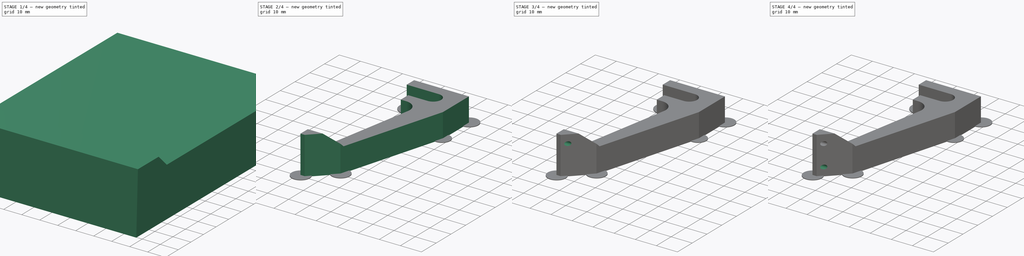
[diagram: build sequence overview — one tinted view per stage of 4, left to right]
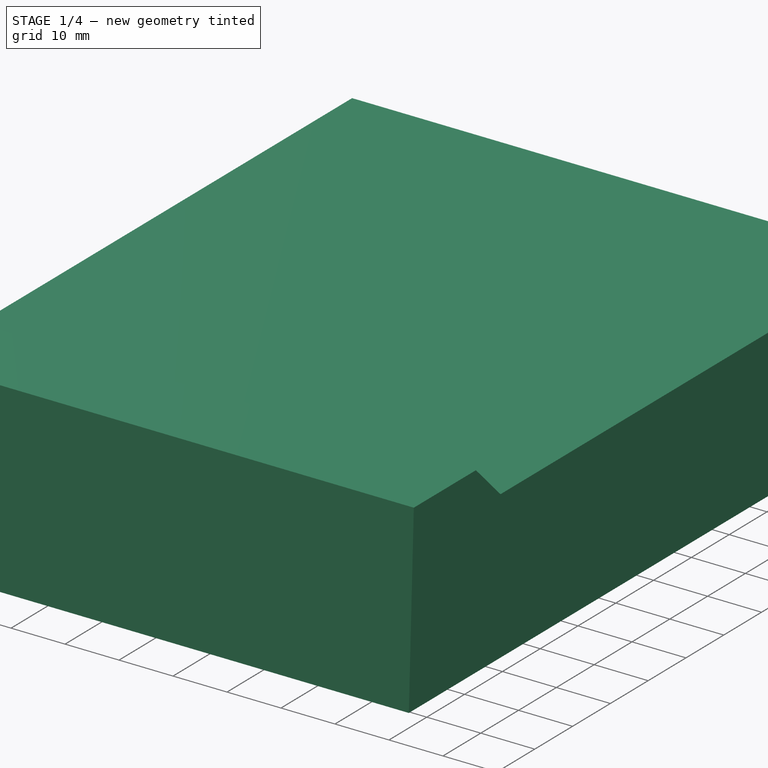
[diagram: stage 1 of 4 — iso view after this stage's code; geometry added in this stage tinted green]
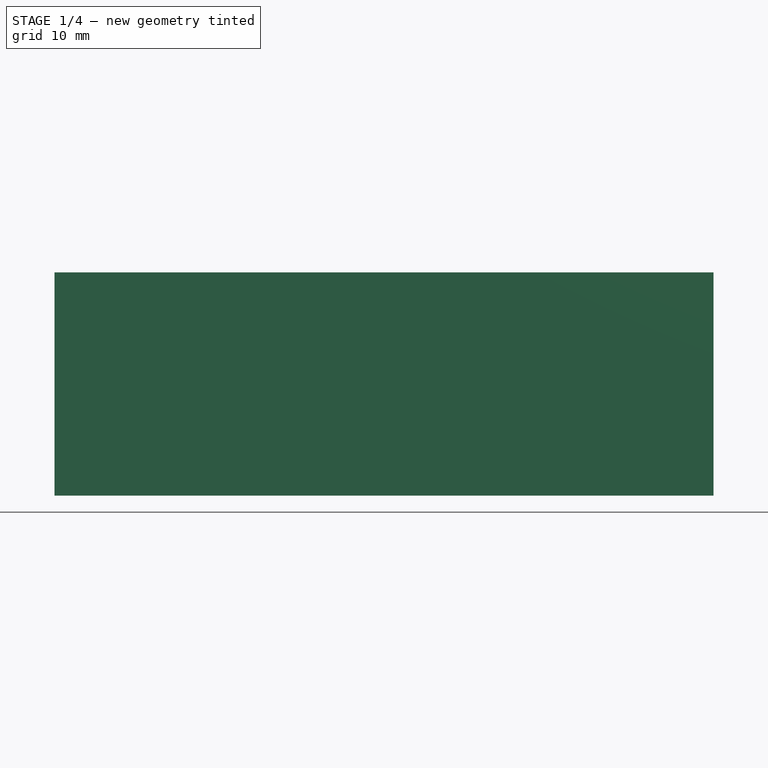
[diagram: stage 1 of 4 — front view after this stage's code; geometry added in this stage tinted green]
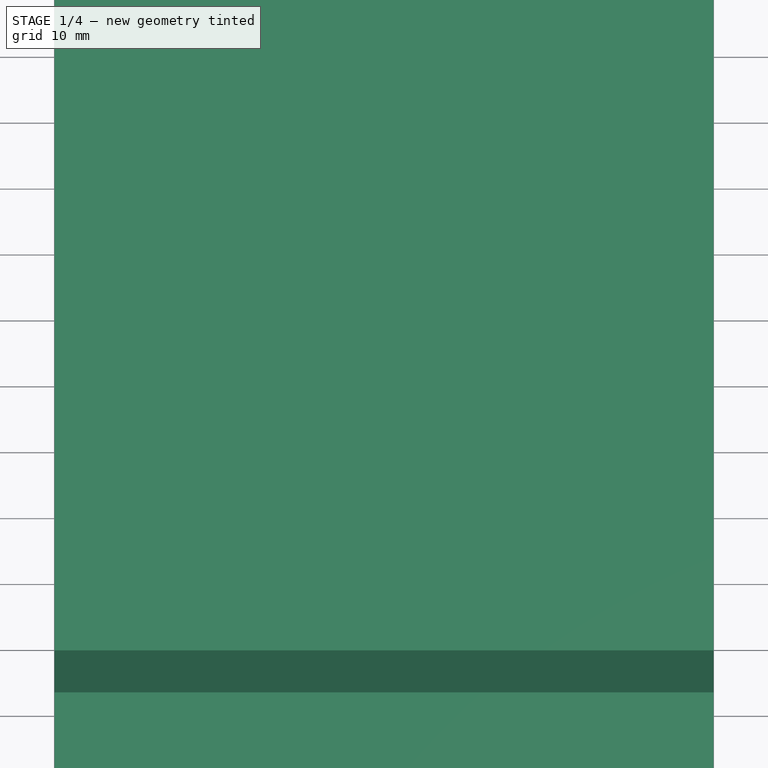
[diagram: stage 1 of 4 — top view after this stage's code; geometry added in this stage tinted green]
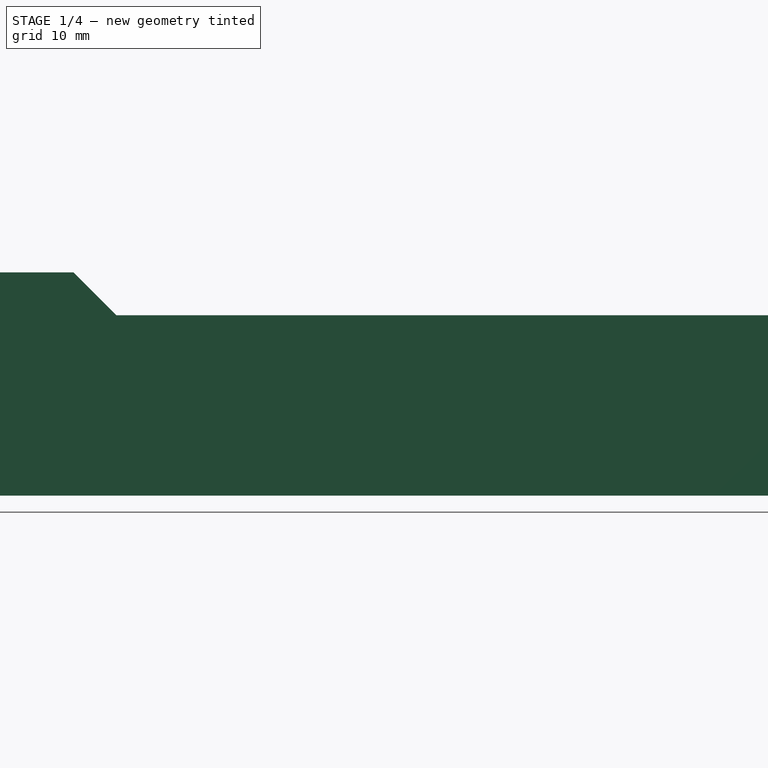
[diagram: stage 1 of 4 — right view after this stage's code; geometry added in this stage tinted green]
FCSTD DOCUMENT  (FreeCAD 0.17R13541 (Git))
Label: kossel_xl_probe_removable_calibration
License: All rights reserved
LicenseURL: http://en.wikipedia.org/wiki/All_rights_reserved
objects: Sketcher::SketchObject×4, Part::Extrusion×4, Part::Cut×2, Part::Part2DObjectPython×1, Part::FeaturePython×1, Part::MultiCommon×1, Part::MultiFuse×1
note: 14 computed .brp shape members not serialized (recipe doc carries the construction recipe); baked Part::Feature solids carry a one-line shape summary decoded from their .brp

FEATURE [Sketcher::SketchObject] Sketch002
  Placement = pos=(0,0,0) rot=(0.57735,0.57735,0.57735;2.0944rad)
  sketch-geometry (6):
    g0: LineSegment StartX=-83.422 StartY=18 StartZ=0 EndX=-67 EndY=18 EndZ=0
    g1: LineSegment StartX=-67 StartY=18 StartZ=0 EndX=-60.5 EndY=11.5 EndZ=0
    g2: LineSegment StartX=-60.5 StartY=11.5 StartZ=0 EndX=43.0716 EndY=11.5 EndZ=0
    g3: LineSegment StartX=43.0716 StartY=11.5 StartZ=0 EndX=44.9375 EndY=-15.8603 EndZ=0
    g4: LineSegment StartX=44.9375 StartY=-15.8603 StartZ=0 EndX=-84.7437 EndY=-15.8603 EndZ=0
    g5: LineSegment StartX=-84.7437 StartY=-15.8603 StartZ=0 EndX=-83.422 EndY=18 EndZ=0
  constraints (13):
    c: Horizontal(g0)
    c: Coincident(g0,g1)
    c: Coincident(g1,g2)
    c: Horizontal(g2)
    c: Coincident(g2,g3)
    c: Coincident(g3,g4)
    c: Horizontal(g4)
    c: Coincident(g4,g5)
    c: Coincident(g5,g0)
    c: DistanceY(g0) = 18
    c: DistanceX(g0) = -67
    c: Angle(g1) = -0.785398
    c: DistanceY(g2) = 11.5
FEATURE [Part::Extrusion] Extrude002  label="maska"
  Base = -> Sketch002
  Dir = (1,0,0)
  DirMode = 2
  FaceMakerClass = Part::FaceMakerBullseye
  LengthFwd = 100
  LengthRev = 0
  Solid = true
  Symmetric = true
FEATURE [Sketcher::SketchObject] Sketch003
  sketch-geometry (6):
    g0: Circle CenterX=2.92924 CenterY=2.37934 CenterZ=0 NormalX=0 NormalY=0 NormalZ=1 AngleXU=0 Radius=5
    g1: Circle CenterX=28.8976 CenterY=5.40407 CenterZ=0 NormalX=0 NormalY=0 NormalZ=1 AngleXU=0 Radius=4.29356
    g2: Circle CenterX=3.19554 CenterY=-72.0734 CenterZ=0 NormalX=0 NormalY=0 NormalZ=1 AngleXU=0 Radius=4.29292
    g3: Circle CenterX=14.9099 CenterY=-61.7508 CenterZ=0 NormalX=0 NormalY=0 NormalZ=1 AngleXU=0 Radius=4.2473
    g4: Circle CenterX=6.86064 CenterY=-10.3698 CenterZ=0 NormalX=0 NormalY=0 NormalZ=1 AngleXU=0 Radius=4.62194
    g5: Circle CenterX=28.6657 CenterY=-12.6895 CenterZ=0 NormalX=0 NormalY=0 NormalZ=1 AngleXU=0 Radius=3.83976
  constraints (1):
    c: Radius(g0) = 5
FEATURE [Part::Extrusion] Extrude003  label="punktyklejenia"
  Base = -> Sketch003
  Dir = (0,0,1)
  DirMode = 2
  FaceMakerClass = Part::FaceMakerBullseye
  LengthFwd = 0.3
  LengthRev = 0
  Solid = true
  Symmetric = false
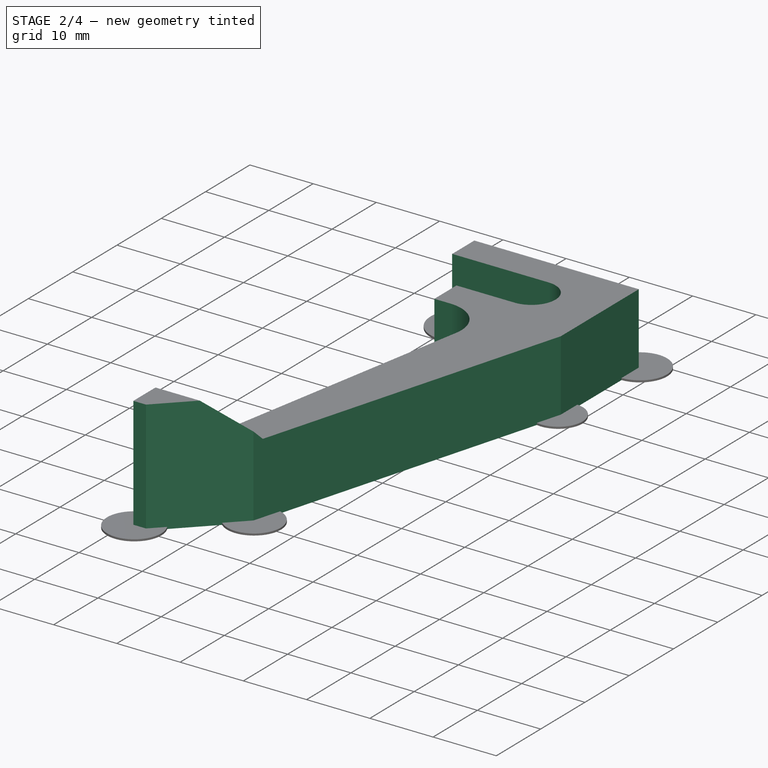
[diagram: stage 2 of 4 — iso view after this stage's code; geometry added in this stage tinted green]
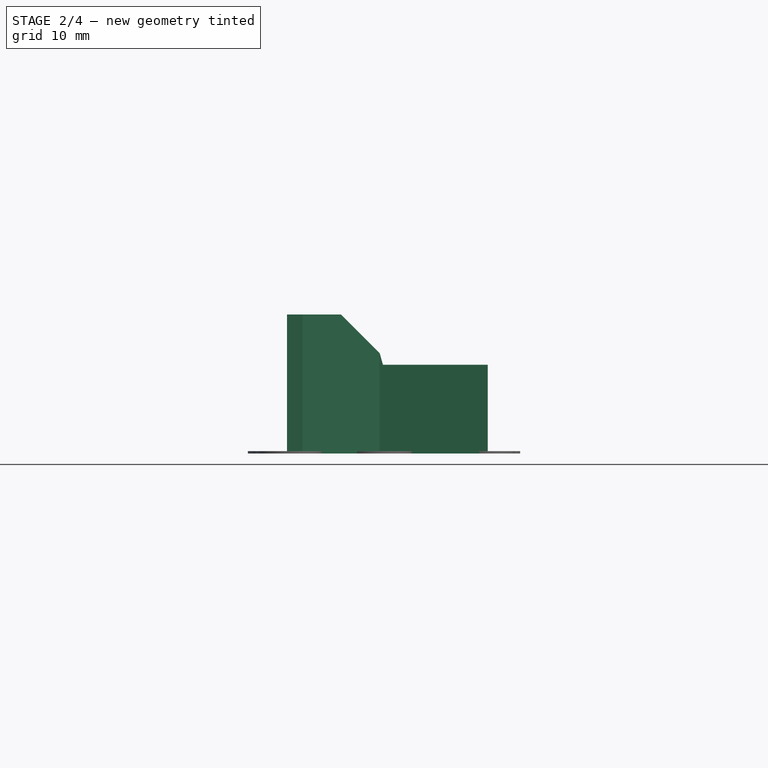
[diagram: stage 2 of 4 — front view after this stage's code; geometry added in this stage tinted green]
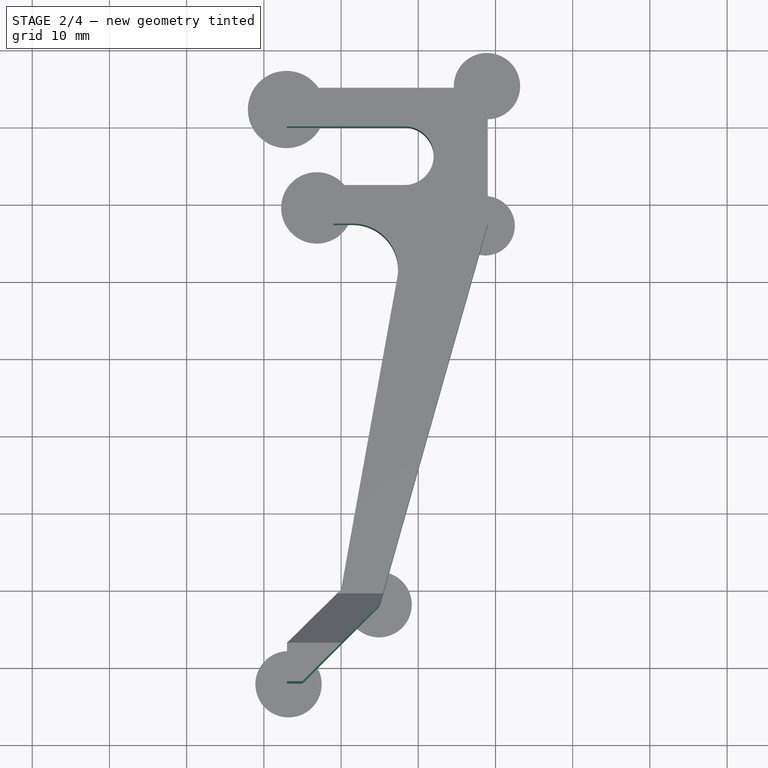
[diagram: stage 2 of 4 — top view after this stage's code; geometry added in this stage tinted green]
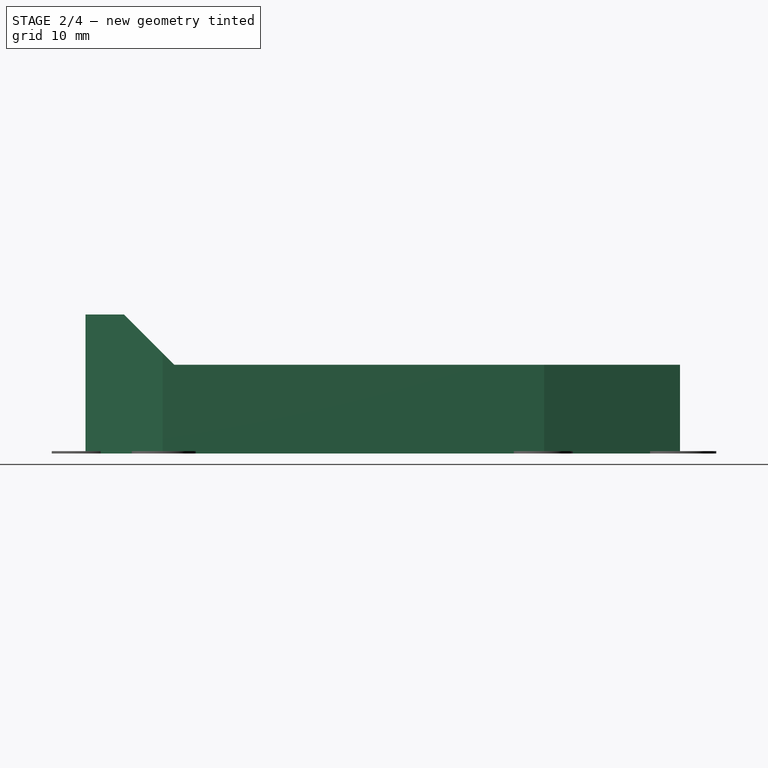
[diagram: stage 2 of 4 — right view after this stage's code; geometry added in this stage tinted green]
FEATURE [Sketcher::SketchObject] Sketch
  sketch-geometry (15):
    g0: LineSegment StartX=3 StartY=5 StartZ=0 EndX=29 EndY=5 EndZ=0
    g1: LineSegment StartX=29 StartY=5 StartZ=0 EndX=29 EndY=-12.6 EndZ=0
    g2: LineSegment StartX=10 StartY=-60 StartZ=0 EndX=17.2908 EndY=-19.529 EndZ=0
    g3: LineSegment StartX=11.4986 StartY=-12.6 StartZ=0 EndX=9 EndY=-12.6 EndZ=0
    g4: LineSegment StartX=9 StartY=-12.6 StartZ=0 EndX=9 EndY=-7.6 EndZ=0
    g5: LineSegment StartX=9 StartY=-7.6 StartZ=0 EndX=18.2 EndY=-7.6 EndZ=0
    g6: LineSegment StartX=18.2 StartY=0 StartZ=0 EndX=3 EndY=0 EndZ=0
    g7: LineSegment StartX=3 StartY=0 StartZ=0 EndX=3 EndY=5 EndZ=0
    g8: LineSegment StartX=10 StartY=-60 StartZ=0 EndX=3 EndY=-67 EndZ=0
    g9: LineSegment StartX=3 StartY=-67 StartZ=0 EndX=3 EndY=-72 EndZ=0
    g10: LineSegment StartX=3 StartY=-72 StartZ=0 EndX=5 EndY=-72 EndZ=0
    g11: LineSegment StartX=5 StartY=-72 StartZ=0 EndX=15 EndY=-62 EndZ=0
    g12: LineSegment StartX=15 StartY=-62 StartZ=0 EndX=29 EndY=-12.6 EndZ=0
    g13: ArcOfCircle CenterX=11.4986 CenterY=-18.4855 CenterZ=0 NormalX=0 NormalY=0 NormalZ=1 AngleXU=0 Radius=5.88552 StartAngle=6.10495 EndAngle=7.85398
    g14: ArcOfCircle CenterX=18.2 CenterY=-3.8 CenterZ=0 NormalX=0 NormalY=0 NormalZ=1 AngleXU=0 Radius=3.8 StartAngle=4.71239 EndAngle=7.85398
  constraints (41):
    c: Horizontal(g0)
    c: Coincident(g0,g1)
    c: Vertical(g1)
    c: Horizontal(g3)
    c: Coincident(g3,g4)
    c: Vertical(g4)
    c: Coincident(g4,g5)
    c: Horizontal(g5)
    c: Horizontal(g6)
    c: Coincident(g6,g7)
    c: Coincident(g7,g0)
    c: Vertical(g7)
    c: DistanceY(g4,g4) = 5
    c: DistanceY(g5,g6) = 7.6
    c: DistanceY(g7,g7) = 5
    c: DistanceX(g-1,g6) = 18.2
    c: DistanceY(g6,g-1) = 0
    c: DistanceX(g6,g0) = 10.8
    c: Coincident(g2,g8)
    c: Coincident(g8,g9)
    c: Vertical(g9)
    c: Coincident(g9,g10)
    c: Horizontal(g10)
    c: Coincident(g10,g11)
    c: Coincident(g11,g12)
    c: DistanceY(g9,g8) = 5
    c: Angle(g8) = -2.35619
    c: DistanceX(g8) = 3
    c: DistanceX(g2,g11) = 5
    c: Distance(g10) = 2
    c: Parallel(g8,g11)
    c: DistanceX(g0) = 3
    c: DistanceX(g4) = 9
    c: DistanceY(g9) = -72
    c: DistanceX(g2) = 10
    c: Tangent(g13,g3) = -1.5708
    c: Tangent(g13,g2) = -1.5708
    c: Coincident(g1,g12)
    c: DistanceY(g3,g1) = 0
    c: Tangent(g14,g6) = -1.5708
    c: Tangent(g14,g5) = -1.5708
FEATURE [Part::Part2DObjectPython] DWire  # Draft 2D object (typed FeaturePython)
  Base = -> Sketch
  ChamferSize = 0
  Closed = true
  End = (0.289943,0.0785695,0)
  FilletRadius = 0
  Length = 225
  MakeFace = true
  Points = (10) [(0.289943,5.07857,0),(20.2899,5.07857,0),(20.2899,-72.4214,0),(15.2899,-72.4214,0),(15.2899,-12.4214,0),(0.289943,-12.4214,0),(0.289943,-7.42143,0),+3 more]
  Start = (0.289943,5.07857,0)
  Subdivisions = 0
FEATURE [Part::Extrusion] Extrude  label="profil"
  Base = -> DWire
  Dir = (0,0,1)
  DirMode = 2
  FaceMakerClass = Part::FaceMakerBullseye
  LengthFwd = 20
  LengthRev = 0
  Solid = true
  Symmetric = false
FEATURE [Part::MultiCommon] Common
  Shapes = -> [Extrude002,Extrude]
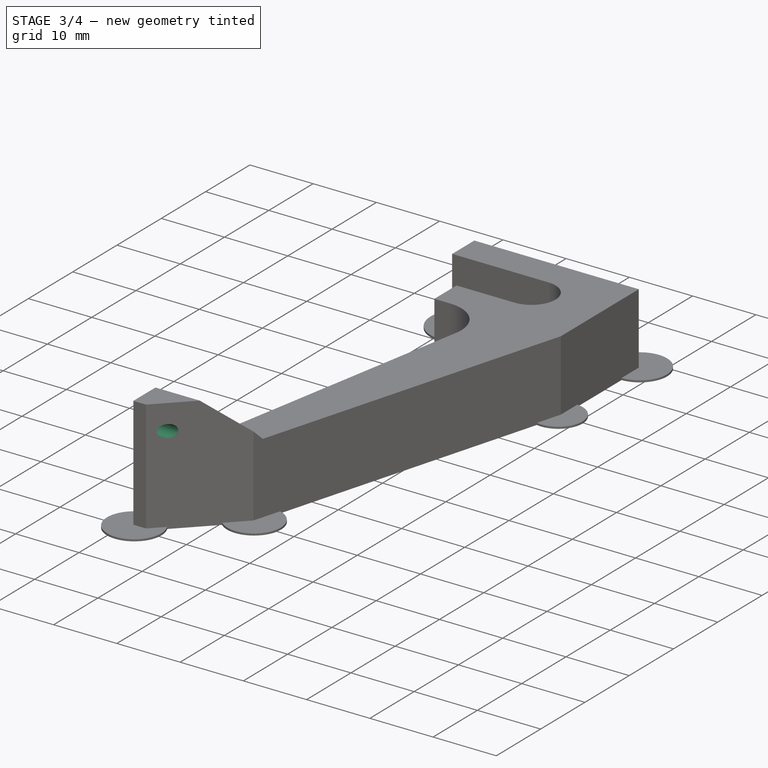
[diagram: stage 3 of 4 — iso view after this stage's code; geometry added in this stage tinted green]
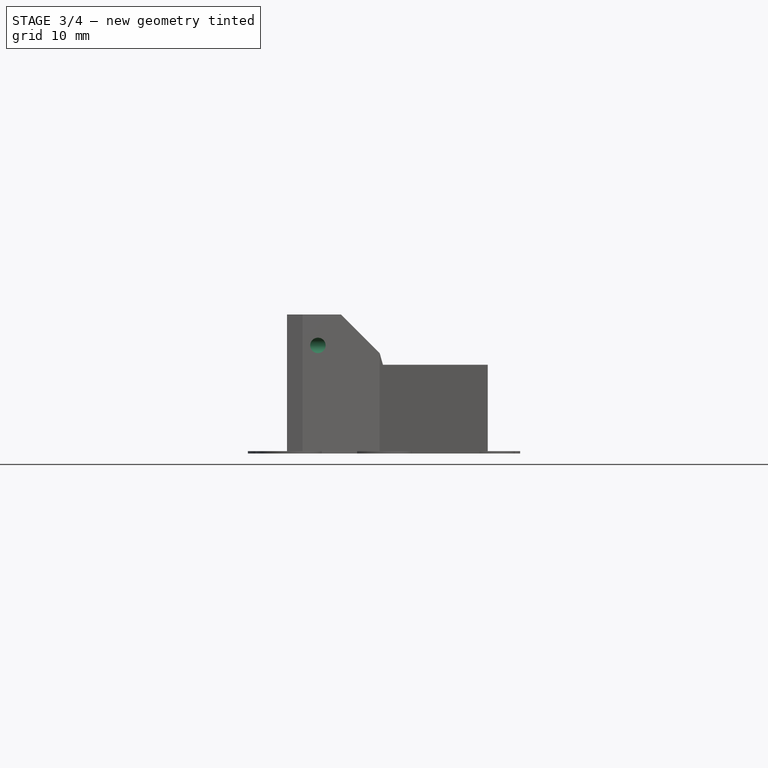
[diagram: stage 3 of 4 — front view after this stage's code; geometry added in this stage tinted green]
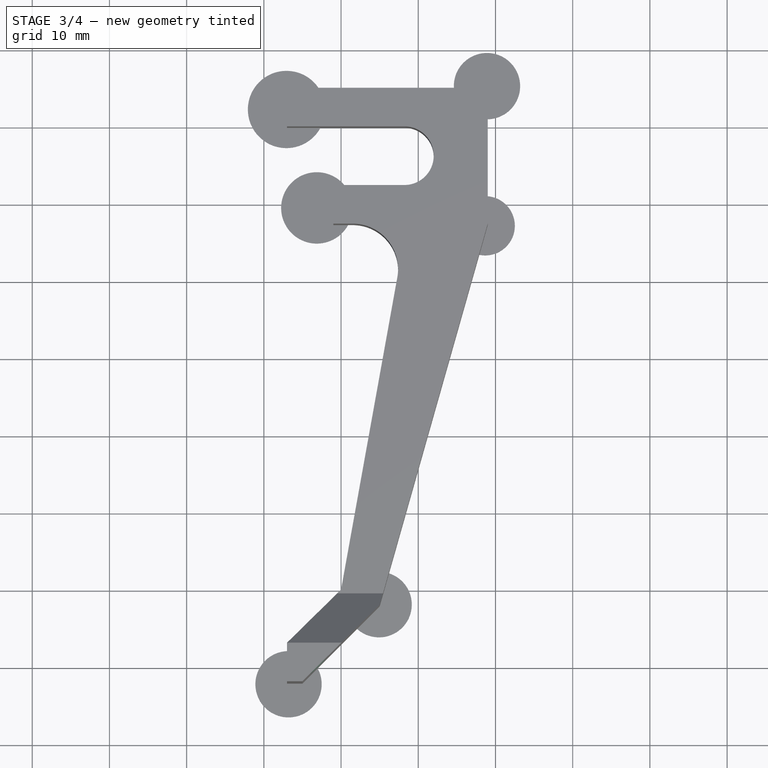
[diagram: stage 3 of 4 — top view after this stage's code; geometry added in this stage tinted green]
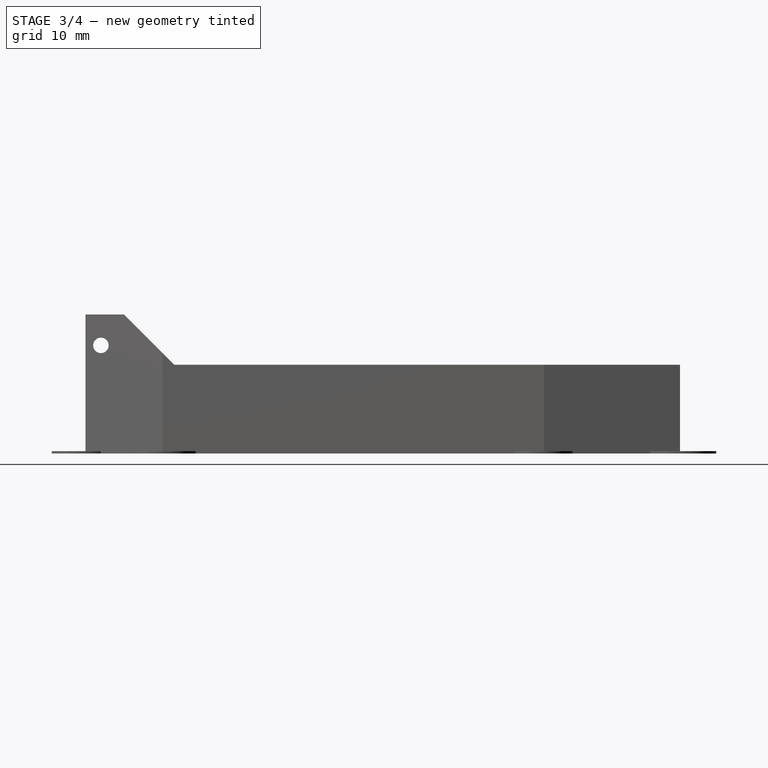
[diagram: stage 3 of 4 — right view after this stage's code; geometry added in this stage tinted green]
FEATURE [Sketcher::SketchObject] Sketch001
  Placement = pos=(0,0,0) rot=(0.57735,0.57735,0.57735;2.0944rad)
  sketch-geometry (1):
    g0: Circle CenterX=-70 CenterY=4 CenterZ=0 NormalX=0 NormalY=0 NormalZ=1 AngleXU=0 Radius=1
  constraints (3):
    c: DistanceX(g0) = -70
    c: DistanceY(g0) = 4
    c: Radius(g0) = 1
FEATURE [Part::Extrusion] Extrude001  label="wkret 1"
  Base = -> Sketch001
  Dir = (1,0,0)
  DirMode = 2
  FaceMakerClass = Part::FaceMakerBullseye
  LengthFwd = 30
  LengthRev = 0
  Solid = true
  Symmetric = true
FEATURE [Part::FeaturePython] Clone  label="wkret 002"  # Draft clone (typed FeaturePython)
  AttacherType = Attacher::AttachEngine3D
  Fuse = false
  Objects = -> [Extrude001]
  Placement = pos=(0,0,10) rot=(0,0,1;0rad)
  Scale = (1,1,1)
FEATURE [Part::Cut] Cut
  Base = -> Common
  Refine = true
  Tool = -> Clone
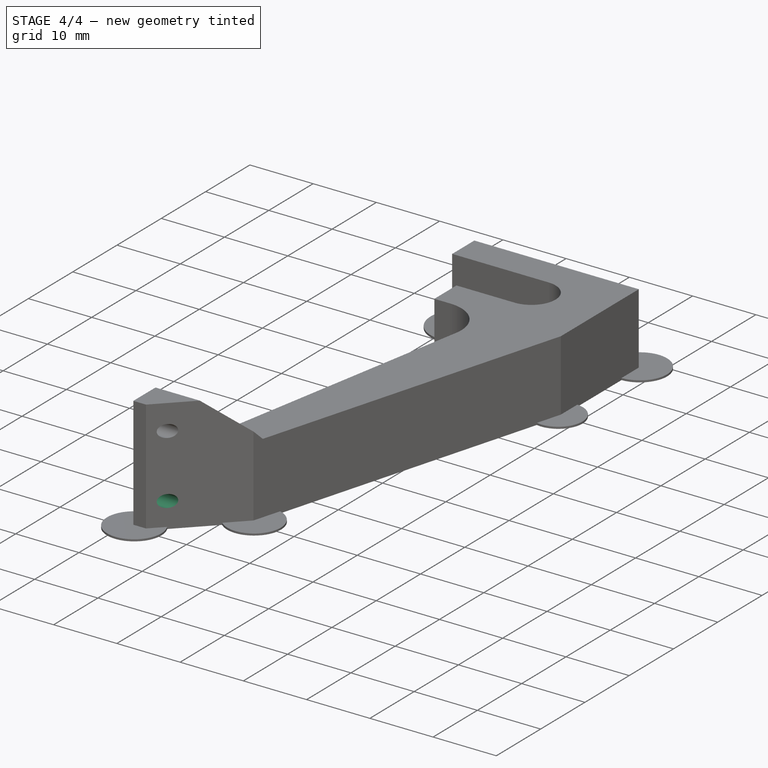
[diagram: stage 4 of 4 — iso view after this stage's code; geometry added in this stage tinted green]
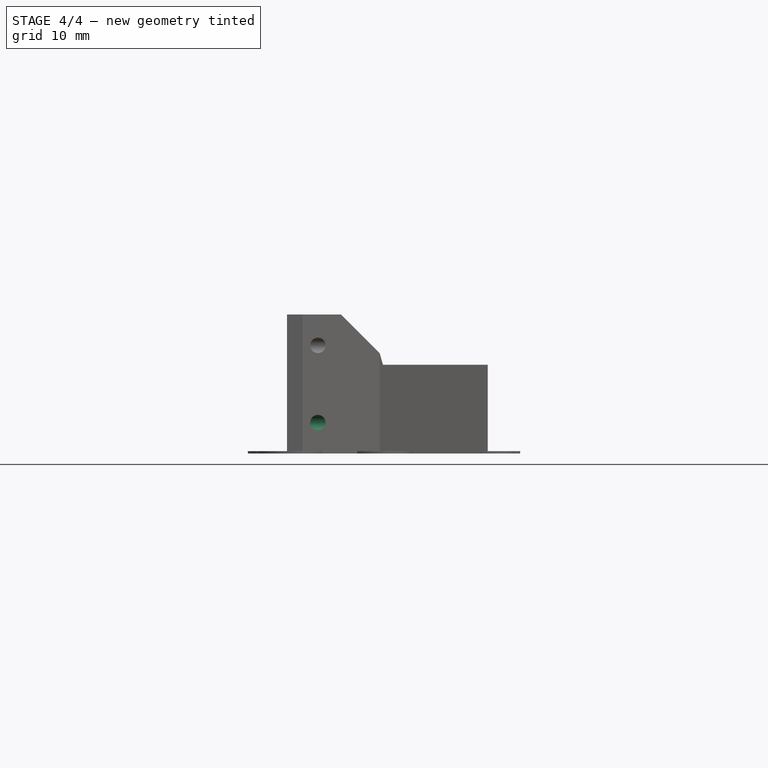
[diagram: stage 4 of 4 — front view after this stage's code; geometry added in this stage tinted green]
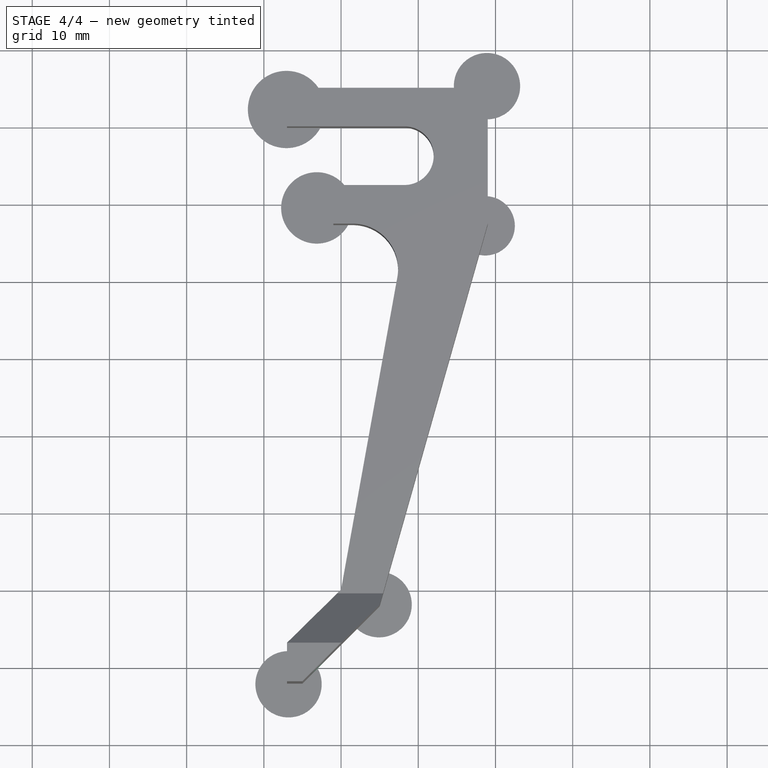
[diagram: stage 4 of 4 — top view after this stage's code; geometry added in this stage tinted green]
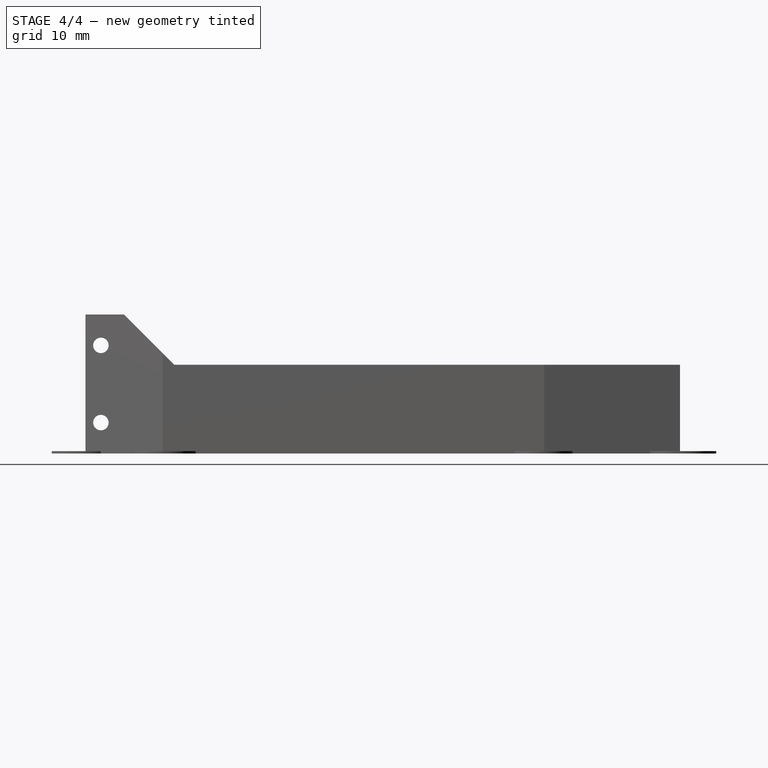
[diagram: stage 4 of 4 — right view after this stage's code; geometry added in this stage tinted green]
FEATURE [Part::Cut] Cut001
  Base = -> Cut
  Refine = true
  Tool = -> Extrude001
FEATURE [Part::MultiFuse] Fusion
  Shapes = -> [Cut001,Extrude003]
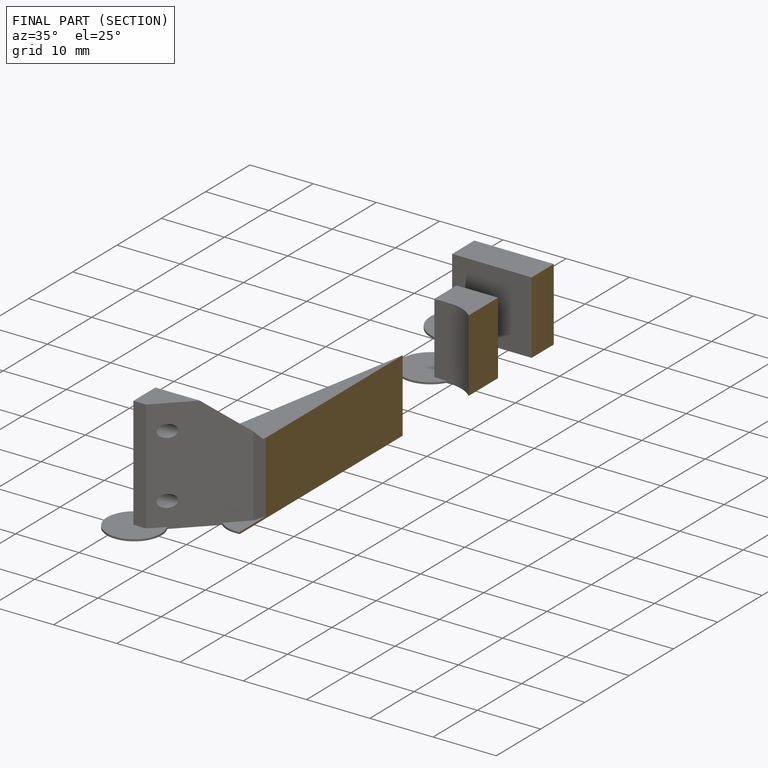
[diagram: finished part — half-section view (interior)]
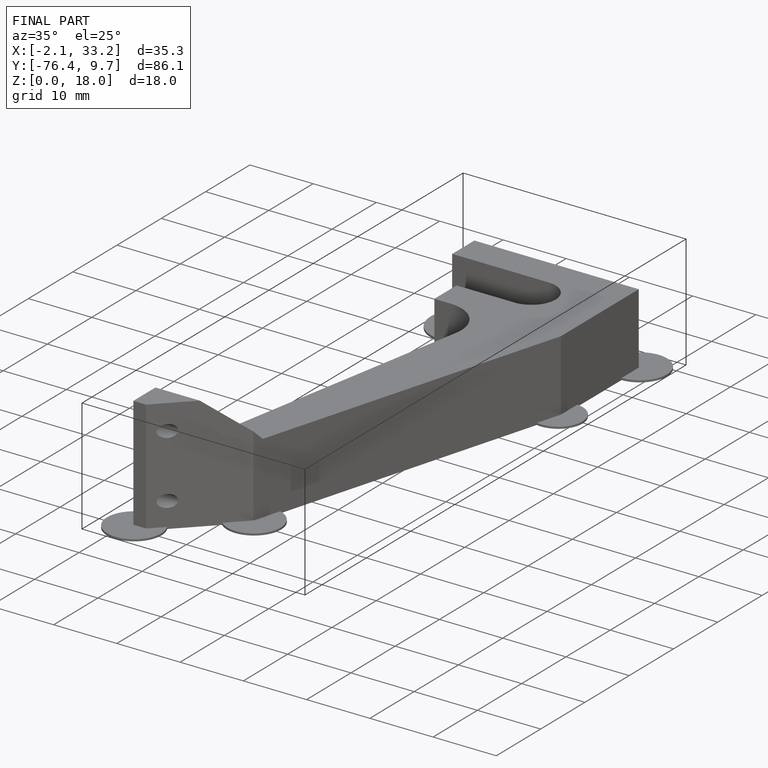
[diagram: finished part — iso view with bounding-box wireframe]
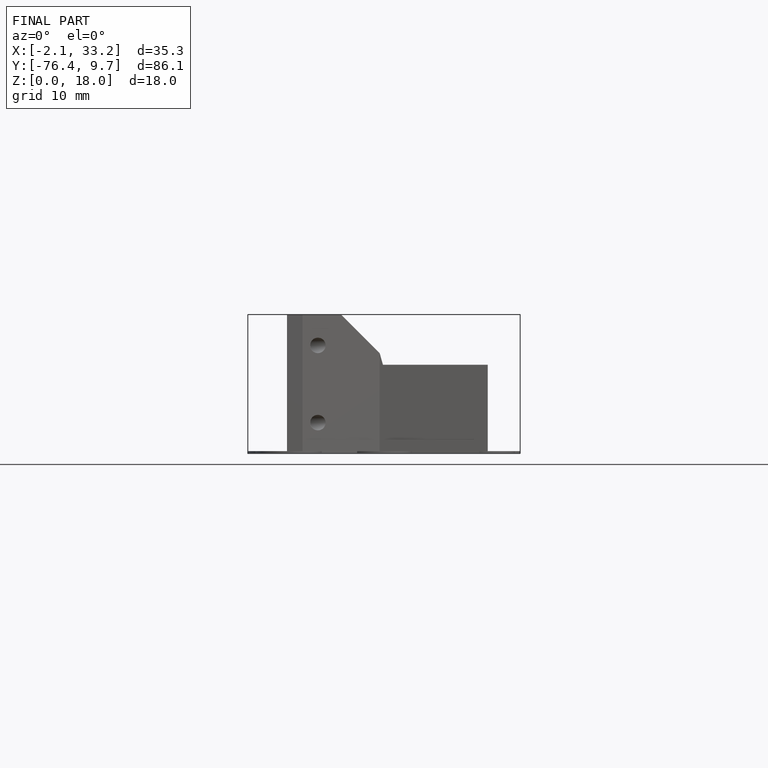
[diagram: finished part — front view with bounding-box wireframe]
